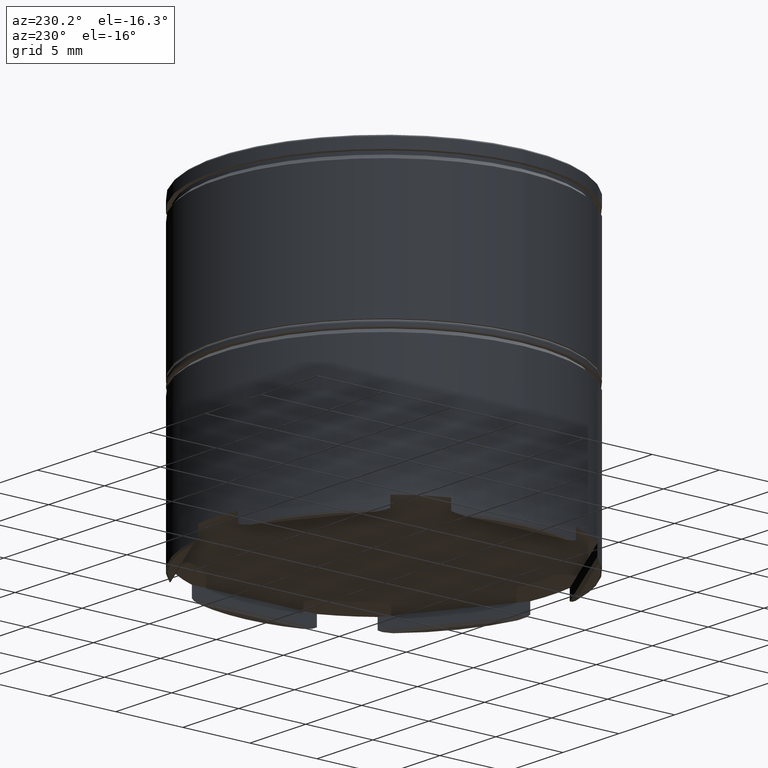
[diagram: clean part render]
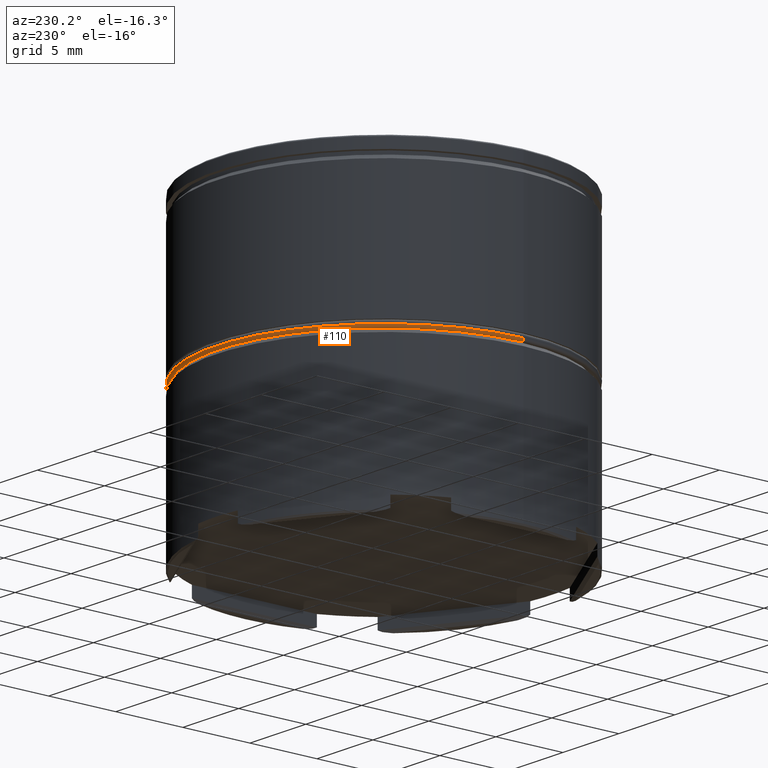
[diagram: same view with one face highlighted and labeled with its STEP entity id]
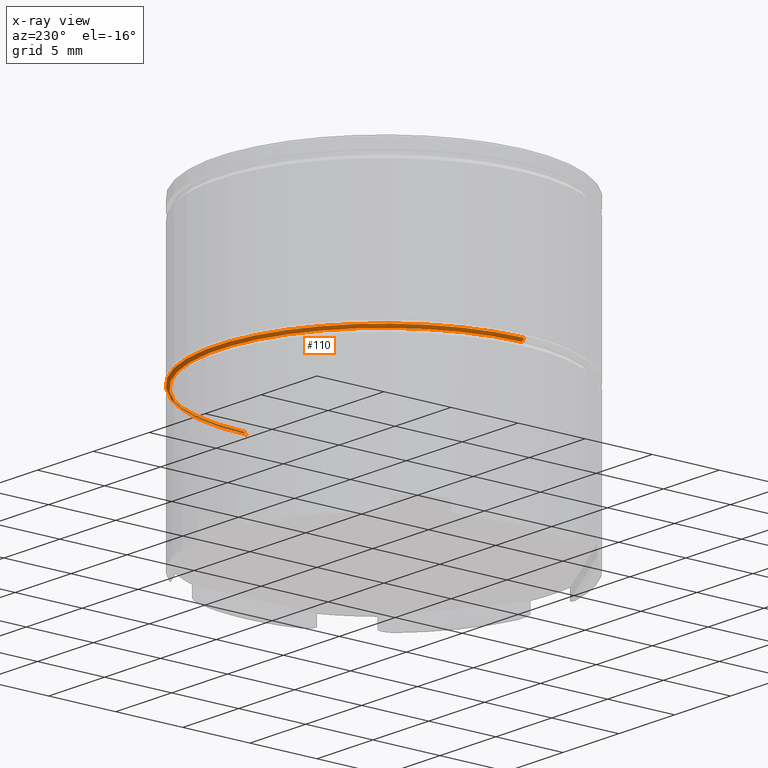
[diagram: x-ray of the same camera — body ghosted, the highlighted face saturated]
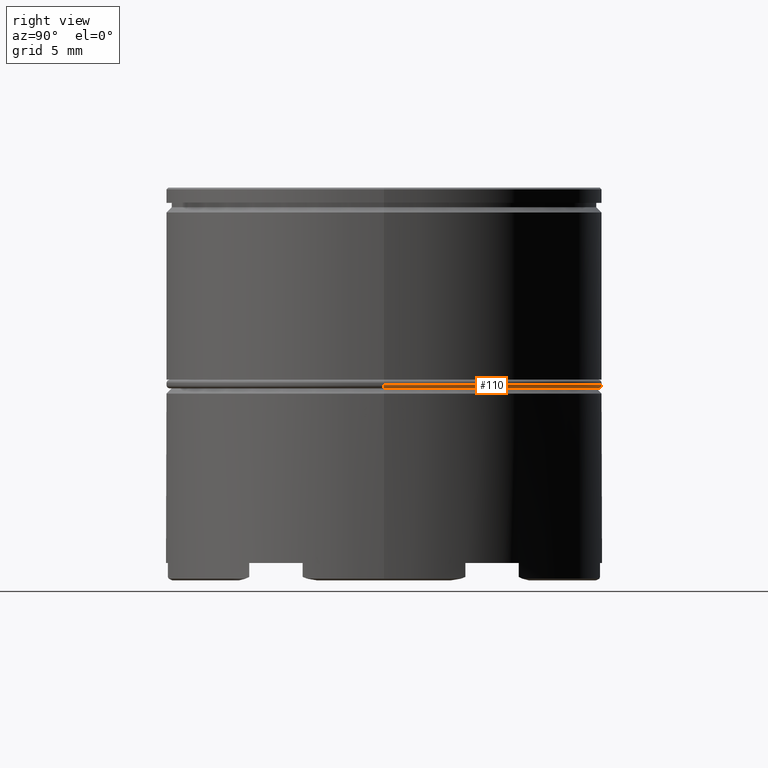
[diagram: same view with one face highlighted and labeled with its STEP entity id]
A machine part, auxiliary view. The second image highlights one B-rep face of the part: STEP entity #110.
The next image is the same camera in x-ray: the body ghosted, the highlighted face saturated — about 8% of this face is hidden behind the body in this view.
A second angle (right view) of the same face is appended — the face is thin or edge-on in the first view.
In plain terms, the highlighted toroidal blend (fillet) surface has major radius 12.3 mm and minor (blend) radius 0.2 mm.
Its self-contained STEP definition (entity closure, byte-faithful):
#34 = CARTESIAN_POINT ( 'NONE',  ( 12.50000000000000000, 0.000000000000000000, -11.29999999999999716 ) ) ;
#67 = CARTESIAN_POINT ( 'NONE',  ( 12.30000000000000071, 0.000000000000000000, -11.29999999999999716 ) ) ;
#110 = ADVANCED_FACE ( 'NONE', ( #607 ), #1400, .T. ) ;
#297 = EDGE_CURVE ( 'NONE', #1183, #750, #332, .T. ) ;
#308 = DIRECTION ( 'NONE',  ( 1.224646799147353207E-16, 1.000000000000000000, -0.000000000000000000 ) ) ;
#332 = CIRCLE ( 'NONE', #1457, 12.50000000000000000 ) ;
#401 = CARTESIAN_POINT ( 'NONE',  ( 0.000000000000000000, 0.000000000000000000, -11.49999999999999822 ) ) ;
#418 = DIRECTION ( 'NONE',  ( -0.000000000000000000, -0.000000000000000000, -1.000000000000000000 ) ) ;
#421 = CARTESIAN_POINT ( 'NONE',  ( 12.30000000000000071, 0.000000000000000000, -11.49999999999999822 ) ) ;
#432 = EDGE_LOOP ( 'NONE', ( #660, #1455, #1040, #1543 ) ) ;
#504 = CIRCLE ( 'NONE', #1340, 0.2000000000000005107 ) ;
#509 = AXIS2_PLACEMENT_3D ( 'NONE', #1254, #727, #979 ) ;
#556 = DIRECTION ( 'NONE',  ( 0.000000000000000000, -1.000000000000000000, 0.000000000000000000 ) ) ;
#607 = FACE_OUTER_BOUND ( 'NONE', #432, .T. ) ;
#660 = ORIENTED_EDGE ( 'NONE', *, *, #832, .F. ) ;
#727 = DIRECTION ( 'NONE',  ( 0.000000000000000000, 0.000000000000000000, 1.000000000000000000 ) ) ;
#750 = VERTEX_POINT ( 'NONE', #872 ) ;
#832 = EDGE_CURVE ( 'NONE', #1300, #1145, #1234, .T. ) ;
#872 = CARTESIAN_POINT ( 'NONE',  ( -12.50000000000000000, 1.530808498934191521E-15, -11.29999999999999716 ) ) ;
#916 = CARTESIAN_POINT ( 'NONE',  ( 0.000000000000000000, 0.000000000000000000, -11.29999999999999716 ) ) ;
#939 = DIRECTION ( 'NONE',  ( 0.000000000000000000, 0.000000000000000000, 1.000000000000000000 ) ) ;
#979 = DIRECTION ( 'NONE',  ( 1.000000000000000000, 0.000000000000000000, 0.000000000000000000 ) ) ;
#1040 = ORIENTED_EDGE ( 'NONE', *, *, #297, .F. ) ;
#1066 = DIRECTION ( 'NONE',  ( 0.000000000000000000, 0.000000000000000000, -1.000000000000000000 ) ) ;
#1145 = VERTEX_POINT ( 'NONE', #421 ) ;
#1183 = VERTEX_POINT ( 'NONE', #34 ) ;
#1188 = DIRECTION ( 'NONE',  ( 1.000000000000000000, 0.000000000000000000, 0.000000000000000000 ) ) ;
#1224 = CARTESIAN_POINT ( 'NONE',  ( -12.30000000000000071, 1.518562030942717967E-15, -11.49999999999999822 ) ) ;
#1234 = CIRCLE ( 'NONE', #1294, 12.30000000000000071 ) ;
#1254 = CARTESIAN_POINT ( 'NONE',  ( 0.000000000000000000, 0.000000000000000000, -11.29999999999999716 ) ) ;
#1262 = DIRECTION ( 'NONE',  ( -1.000000000000000000, 1.224646799147353207E-16, 0.000000000000000000 ) ) ;
#1294 = AXIS2_PLACEMENT_3D ( 'NONE', #401, #418, #1433 ) ;
#1300 = VERTEX_POINT ( 'NONE', #1224 ) ;
#1312 = CIRCLE ( 'NONE', #1580, 0.2000000000000005107 ) ;
#1340 = AXIS2_PLACEMENT_3D ( 'NONE', #1546, #308, #1262 ) ;
#1400 = TOROIDAL_SURFACE ( 'NONE', #509, 12.30000000000000071, 0.2000000000000000111 ) ;
#1433 = DIRECTION ( 'NONE',  ( 1.000000000000000000, 0.000000000000000000, 0.000000000000000000 ) ) ;
#1455 = ORIENTED_EDGE ( 'NONE', *, *, #1570, .T. ) ;
#1457 = AXIS2_PLACEMENT_3D ( 'NONE', #916, #939, #1188 ) ;
#1543 = ORIENTED_EDGE ( 'NONE', *, *, #1597, .F. ) ;
#1546 = CARTESIAN_POINT ( 'NONE',  ( -12.30000000000000071, 1.506315562951244413E-15, -11.29999999999999716 ) ) ;
#1570 = EDGE_CURVE ( 'NONE', #1300, #750, #504, .T. ) ;
#1580 = AXIS2_PLACEMENT_3D ( 'NONE', #67, #556, #1066 ) ;
#1597 = EDGE_CURVE ( 'NONE', #1145, #1183, #1312, .T. ) ;